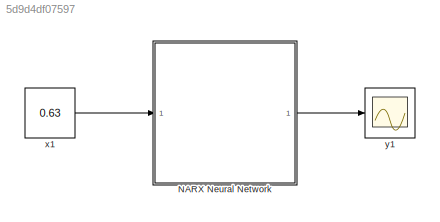
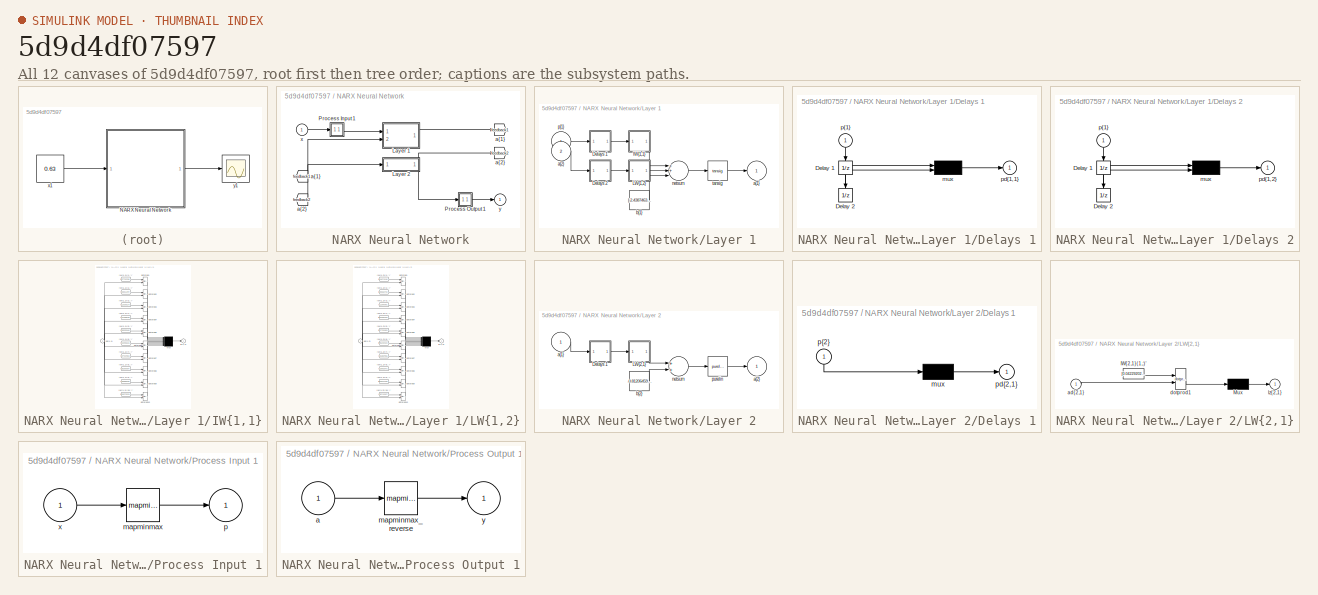
[diagram: thumbnail index - all 12 canvases of the model, root first then tree order]
MODEL slx_5d9d4df07597
KIND model
CONFIG AbsTol = auto
CONFIG EnableMultiTasking = off
CONFIG FixedStep = auto
CONFIG MaxStep = auto
CONFIG MinStep = auto
CONFIG RelTol = 1e-3
CONFIG SampleTimeConstraint = Unconstrained
CONFIG Solver = VariableStepAuto
CONFIG SolverName = VariableStepAuto
CONFIG StartTime = 0.0
CONFIG StopTime = 10.0
BLOCK [SubSystem] NARX Neural Network
  Ports = [1, 1]
  RequestExecContextInheritance = off
BLOCK [From] NARX Neural Network/ a{1} 
  GotoTag = feedback1
BLOCK [From] NARX Neural Network/ a{2} 
  GotoTag = feedback2
BLOCK [SubSystem] NARX Neural Network/Layer 1
  Ports = [2, 1]
  RequestExecContextInheritance = off
BLOCK [SubSystem] NARX Neural Network/Layer 1/Delays 1
  Ports = [1, 1]
  RequestExecContextInheritance = off
BLOCK [UnitDelay] NARX Neural Network/Layer 1/Delays 1/Delay 1
  InitialCondition = pi_input_1_delayed_1
  SampleTime = 0.01
BLOCK [UnitDelay] NARX Neural Network/Layer 1/Delays 1/Delay 2
  InitialCondition = pi_input_1_delayed_2
  SampleTime = 0.01
BLOCK [Mux] NARX Neural Network/Layer 1/Delays 1/mux
  Inputs = 2
  Ports = [2, 1]
BLOCK [Outport] NARX Neural Network/Layer 1/Delays 1/pd{1,1}
  IconDisplay = Port number
BLOCK [Inport] NARX Neural Network/Layer 1/Delays 1/p{1}
  IconDisplay = Port number
  PortDimensions = 1
  SampleTime = 0.01
BLOCK [SubSystem] NARX Neural Network/Layer 1/Delays 2
  Ports = [1, 1]
  RequestExecContextInheritance = off
BLOCK [UnitDelay] NARX Neural Network/Layer 1/Delays 2/Delay 1
  InitialCondition = ai_layer_2_delayed_1
  SampleTime = 0.01
BLOCK [UnitDelay] NARX Neural Network/Layer 1/Delays 2/Delay 2
  InitialCondition = ai_layer_2_delayed_2
  SampleTime = 0.01
BLOCK [Mux] NARX Neural Network/Layer 1/Delays 2/mux
  Inputs = 2
  Ports = [2, 1]
BLOCK [Outport] NARX Neural Network/Layer 1/Delays 2/pd{1,2}
  IconDisplay = Port number
BLOCK [Inport] NARX Neural Network/Layer 1/Delays 2/p{1}
  IconDisplay = Port number
  PortDimensions = 1
  SampleTime = 0.01
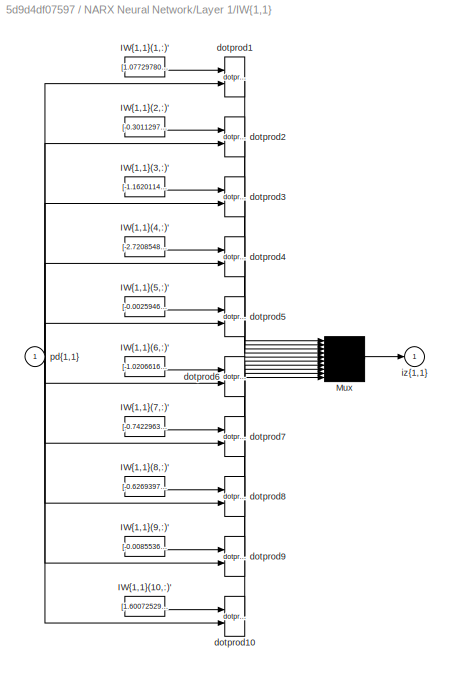
BLOCK [SubSystem] NARX Neural Network/Layer 1/IW{1,1}
  Ports = [1, 1]
  RequestExecContextInheritance = off
BLOCK [Constant] NARX Neural Network/Layer 1/IW{1,1}/IW{1,1}(1,:)'
  Value = [1.0772978049856869464662167956703342497348785400390625;-0.01012235439017921713455994137120796949602663516998291015625]
BLOCK [Constant] NARX Neural Network/Layer 1/IW{1,1}/IW{1,1}(10,:)'
  Value = [1.600725294846861768149892668589018285274505615234375;-0.280489653356175872023214878936414606869220733642578125]
BLOCK [Constant] NARX Neural Network/Layer 1/IW{1,1}/IW{1,1}(2,:)'
  Value = [-0.30112978484733987638577445977716706693172454833984375;-1.018346248745336080077095175511203706264495849609375]
BLOCK [Constant] NARX Neural Network/Layer 1/IW{1,1}/IW{1,1}(3,:)'
  Value = [-1.1620114065831967931075041633448563516139984130859375;1.09192647163427292156256953603588044643402099609375]
BLOCK [Constant] NARX Neural Network/Layer 1/IW{1,1}/IW{1,1}(4,:)'
  Value = [-2.7208548107889232170464310911484062671661376953125;2.68905401117679065947640992817468941211700439453125]
BLOCK [Constant] NARX Neural Network/Layer 1/IW{1,1}/IW{1,1}(5,:)'
  Value = [-0.0025946680557739410823148151763462010421790182590484619140625;0.0019710027003627013375552934348888811655342578887939453125]
BLOCK [Constant] NARX Neural Network/Layer 1/IW{1,1}/IW{1,1}(6,:)'
  Value = [-1.0206616494851192822324037479120306670665740966796875;1.509127390879307473170456432853825390338897705078125]
BLOCK [Constant] NARX Neural Network/Layer 1/IW{1,1}/IW{1,1}(7,:)'
  Value = [-0.742296352845602580572403894620947539806365966796875;1.7922463052203638778081540294806472957134246826171875]
BLOCK [Constant] NARX Neural Network/Layer 1/IW{1,1}/IW{1,1}(8,:)'
  Value = [-0.6269397128839793165155924725695513188838958740234375;0.38965571725769543309780829076771624386310577392578125]
BLOCK [Constant] NARX Neural Network/Layer 1/IW{1,1}/IW{1,1}(9,:)'
  Value = [-0.00855360191636327267528105977589802932925522327423095703125;0.01364841619945435235994324330022209323942661285400390625]
BLOCK [Mux] NARX Neural Network/Layer 1/IW{1,1}/Mux
  Inputs = 10
  Ports = [10, 1]
BLOCK [Reference] NARX Neural Network/Layer 1/IW{1,1}/dotprod1  REF=neural/Weight Functions/dotprod
  Ports = [2, 1]
  SourceBlock = neural/Weight Functions/dotprod
  SourceProductBaseCode = Missing
  SourceProductName = MATLAB Runtime - Deep Learning Toolbox
  SourceType = DOTPROD
BLOCK [Reference] NARX Neural Network/Layer 1/IW{1,1}/dotprod10  REF=neural/Weight Functions/dotprod
  Ports = [2, 1]
  SourceBlock = neural/Weight Functions/dotprod
  SourceProductBaseCode = Missing
  SourceProductName = MATLAB Runtime - Deep Learning Toolbox
  SourceType = DOTPROD
BLOCK [Reference] NARX Neural Network/Layer 1/IW{1,1}/dotprod2  REF=neural/Weight Functions/dotprod
  Ports = [2, 1]
  SourceBlock = neural/Weight Functions/dotprod
  SourceProductBaseCode = Missing
  SourceProductName = MATLAB Runtime - Deep Learning Toolbox
  SourceType = DOTPROD
BLOCK [Reference] NARX Neural Network/Layer 1/IW{1,1}/dotprod3  REF=neural/Weight Functions/dotprod
  Ports = [2, 1]
  SourceBlock = neural/Weight Functions/dotprod
  SourceProductBaseCode = Missing
  SourceProductName = MATLAB Runtime - Deep Learning Toolbox
  SourceType = DOTPROD
BLOCK [Reference] NARX Neural Network/Layer 1/IW{1,1}/dotprod4  REF=neural/Weight Functions/dotprod
  Ports = [2, 1]
  SourceBlock = neural/Weight Functions/dotprod
  SourceProductBaseCode = Missing
  SourceProductName = MATLAB Runtime - Deep Learning Toolbox
  SourceType = DOTPROD
BLOCK [Reference] NARX Neural Network/Layer 1/IW{1,1}/dotprod5  REF=neural/Weight Functions/dotprod
  Ports = [2, 1]
  SourceBlock = neural/Weight Functions/dotprod
  SourceProductBaseCode = Missing
  SourceProductName = MATLAB Runtime - Deep Learning Toolbox
  SourceType = DOTPROD
BLOCK [Reference] NARX Neural Network/Layer 1/IW{1,1}/dotprod6  REF=neural/Weight Functions/dotprod
  Ports = [2, 1]
  SourceBlock = neural/Weight Functions/dotprod
  SourceProductBaseCode = Missing
  SourceProductName = MATLAB Runtime - Deep Learning Toolbox
  SourceType = DOTPROD
BLOCK [Reference] NARX Neural Network/Layer 1/IW{1,1}/dotprod7  REF=neural/Weight Functions/dotprod
  Ports = [2, 1]
  SourceBlock = neural/Weight Functions/dotprod
  SourceProductBaseCode = Missing
  SourceProductName = MATLAB Runtime - Deep Learning Toolbox
  SourceType = DOTPROD
BLOCK [Reference] NARX Neural Network/Layer 1/IW{1,1}/dotprod8  REF=neural/Weight Functions/dotprod
  Ports = [2, 1]
  SourceBlock = neural/Weight Functions/dotprod
  SourceProductBaseCode = Missing
  SourceProductName = MATLAB Runtime - Deep Learning Toolbox
  SourceType = DOTPROD
BLOCK [Reference] NARX Neural Network/Layer 1/IW{1,1}/dotprod9  REF=neural/Weight Functions/dotprod
  Ports = [2, 1]
  SourceBlock = neural/Weight Functions/dotprod
  SourceProductBaseCode = Missing
  SourceProductName = MATLAB Runtime - Deep Learning Toolbox
  SourceType = DOTPROD
BLOCK [Outport] NARX Neural Network/Layer 1/IW{1,1}/iz{1,1}
  IconDisplay = Port number
BLOCK [Inport] NARX Neural Network/Layer 1/IW{1,1}/pd{1,1}
  IconDisplay = Port number
  PortDimensions = 2
  SampleTime = 0.01
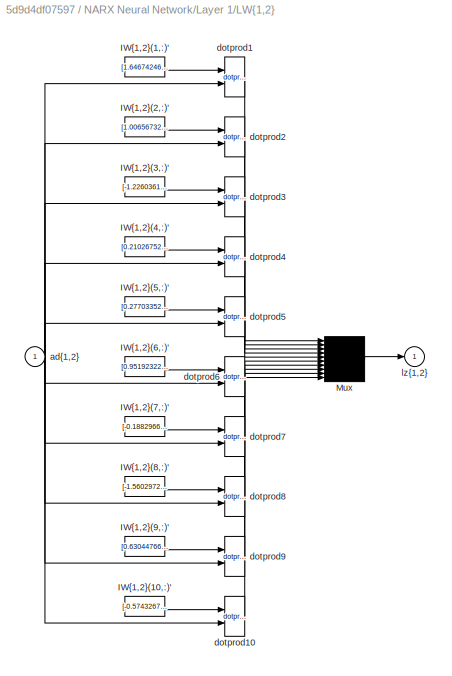
BLOCK [SubSystem] NARX Neural Network/Layer 1/LW{1,2}
  Ports = [1, 1]
  RequestExecContextInheritance = off
BLOCK [Constant] NARX Neural Network/Layer 1/LW{1,2}/IW{1,2}(1,:)'
  Value = [1.6467424662724281514414315097383223474025726318359375;-1.4046041172633725313545483004418201744556427001953125]
BLOCK [Constant] NARX Neural Network/Layer 1/LW{1,2}/IW{1,2}(10,:)'
  Value = [-0.5743267283267512457456405172706581652164459228515625;0.958706856278424002226756783784367144107818603515625]
BLOCK [Constant] NARX Neural Network/Layer 1/LW{1,2}/IW{1,2}(2,:)'
  Value = [1.006567321369391532215331608313135802745819091796875;-1.3021991841284841218140400087577290832996368408203125]
BLOCK [Constant] NARX Neural Network/Layer 1/LW{1,2}/IW{1,2}(3,:)'
  Value = [-1.226036149860531221378323607495985925197601318359375;-0.078923729854379287562693434665561653673648834228515625]
BLOCK [Constant] NARX Neural Network/Layer 1/LW{1,2}/IW{1,2}(4,:)'
  Value = [0.21026752207297250141238009746302850544452667236328125;-0.58106775827737522366334133039345033466815948486328125]
BLOCK [Constant] NARX Neural Network/Layer 1/LW{1,2}/IW{1,2}(5,:)'
  Value = [0.27703352801619074430306000067503191530704498291015625;-0.06166392647433656393207712653747876174747943878173828125]
BLOCK [Constant] NARX Neural Network/Layer 1/LW{1,2}/IW{1,2}(6,:)'
  Value = [0.95192322808195939387587714008986949920654296875;1.007778825804528377574342812295071780681610107421875]
BLOCK [Constant] NARX Neural Network/Layer 1/LW{1,2}/IW{1,2}(7,:)'
  Value = [-0.1882966625783847047781449646208784542977809906005859375;0.92356376869554868136447112192399799823760986328125]
BLOCK [Constant] NARX Neural Network/Layer 1/LW{1,2}/IW{1,2}(8,:)'
  Value = [-1.5602972248383746300959273867192678153514862060546875;1.1680766842344436629019810425234027206897735595703125]
BLOCK [Constant] NARX Neural Network/Layer 1/LW{1,2}/IW{1,2}(9,:)'
  Value = [0.630447668788729487232558312825858592987060546875;-0.0426187896611043004480023910218733362853527069091796875]
BLOCK [Mux] NARX Neural Network/Layer 1/LW{1,2}/Mux
  Inputs = 10
  Ports = [10, 1]
BLOCK [Inport] NARX Neural Network/Layer 1/LW{1,2}/ad{1,2}
  IconDisplay = Port number
  PortDimensions = 2
  SampleTime = 0.01
BLOCK [Reference] NARX Neural Network/Layer 1/LW{1,2}/dotprod1  REF=neural/Weight Functions/dotprod
  Ports = [2, 1]
  SourceBlock = neural/Weight Functions/dotprod
  SourceProductBaseCode = Missing
  SourceProductName = MATLAB Runtime - Deep Learning Toolbox
  SourceType = DOTPROD
BLOCK [Reference] NARX Neural Network/Layer 1/LW{1,2}/dotprod10  REF=neural/Weight Functions/dotprod
  Ports = [2, 1]
  SourceBlock = neural/Weight Functions/dotprod
  SourceProductBaseCode = Missing
  SourceProductName = MATLAB Runtime - Deep Learning Toolbox
  SourceType = DOTPROD
BLOCK [Reference] NARX Neural Network/Layer 1/LW{1,2}/dotprod2  REF=neural/Weight Functions/dotprod
  Ports = [2, 1]
  SourceBlock = neural/Weight Functions/dotprod
  SourceProductBaseCode = Missing
  SourceProductName = MATLAB Runtime - Deep Learning Toolbox
  SourceType = DOTPROD
BLOCK [Reference] NARX Neural Network/Layer 1/LW{1,2}/dotprod3  REF=neural/Weight Functions/dotprod
  Ports = [2, 1]
  SourceBlock = neural/Weight Functions/dotprod
  SourceProductBaseCode = Missing
  SourceProductName = MATLAB Runtime - Deep Learning Toolbox
  SourceType = DOTPROD
BLOCK [Reference] NARX Neural Network/Layer 1/LW{1,2}/dotprod4  REF=neural/Weight Functions/dotprod
  Ports = [2, 1]
  SourceBlock = neural/Weight Functions/dotprod
  SourceProductBaseCode = Missing
  SourceProductName = MATLAB Runtime - Deep Learning Toolbox
  SourceType = DOTPROD
BLOCK [Reference] NARX Neural Network/Layer 1/LW{1,2}/dotprod5  REF=neural/Weight Functions/dotprod
  Ports = [2, 1]
  SourceBlock = neural/Weight Functions/dotprod
  SourceProductBaseCode = Missing
  SourceProductName = MATLAB Runtime - Deep Learning Toolbox
  SourceType = DOTPROD
BLOCK [Reference] NARX Neural Network/Layer 1/LW{1,2}/dotprod6  REF=neural/Weight Functions/dotprod
  Ports = [2, 1]
  SourceBlock = neural/Weight Functions/dotprod
  SourceProductBaseCode = Missing
  SourceProductName = MATLAB Runtime - Deep Learning Toolbox
  SourceType = DOTPROD
BLOCK [Reference] NARX Neural Network/Layer 1/LW{1,2}/dotprod7  REF=neural/Weight Functions/dotprod
  Ports = [2, 1]
  SourceBlock = neural/Weight Functions/dotprod
  SourceProductBaseCode = Missing
  SourceProductName = MATLAB Runtime - Deep Learning Toolbox
  SourceType = DOTPROD
BLOCK [Reference] NARX Neural Network/Layer 1/LW{1,2}/dotprod8  REF=neural/Weight Functions/dotprod
  Ports = [2, 1]
  SourceBlock = neural/Weight Functions/dotprod
  SourceProductBaseCode = Missing
  SourceProductName = MATLAB Runtime - Deep Learning Toolbox
  SourceType = DOTPROD
BLOCK [Reference] NARX Neural Network/Layer 1/LW{1,2}/dotprod9  REF=neural/Weight Functions/dotprod
  Ports = [2, 1]
  SourceBlock = neural/Weight Functions/dotprod
  SourceProductBaseCode = Missing
  SourceProductName = MATLAB Runtime - Deep Learning Toolbox
  SourceType = DOTPROD
BLOCK [Outport] NARX Neural Network/Layer 1/LW{1,2}/lz{1,2}
  IconDisplay = Port number
BLOCK [Outport] NARX Neural Network/Layer 1/a{1}
  IconDisplay = Port number
  InitialOutput = [0;0;0;0;0;0;0;0;0;0]
BLOCK [Inport] NARX Neural Network/Layer 1/a{2} 
  IconDisplay = Port number
  Port = 2
  PortDimensions = 1
  SampleTime = 0.01
BLOCK [Constant] NARX Neural Network/Layer 1/b{1}
  Value = [-2.438746381272481666968587887822650372982025146484375;1.952722934367705942548809616710059344768524169921875;0.360989572968640703987119877638178877532482147216796875;1.4098344774993252226380491265445016324520111083984375;0.306283714361408054838165071487310342490673065185546875;0.4496475008793112682070614027907140552997589111328125;-0.94628538846371490489417510616476647555828094482421875;-0.867691...<+158ch>
BLOCK [Sum] NARX Neural Network/Layer 1/netsum
  Inputs = 3
  Ports = [3, 1]
BLOCK [Inport] NARX Neural Network/Layer 1/p{1}
  IconDisplay = Port number
  PortDimensions = 1
  SampleTime = 0.01
BLOCK [Reference] NARX Neural Network/Layer 1/tansig  REF=neural/Transfer Functions/tansig
  Ports = [1, 1]
  SourceBlock = neural/Transfer Functions/tansig
  SourceProductBaseCode = Missing
  SourceProductName = MATLAB Runtime - Deep Learning Toolbox
  SourceType = TANSIG
BLOCK [SubSystem] NARX Neural Network/Layer 2
  Ports = [1, 1]
  RequestExecContextInheritance = off
BLOCK [SubSystem] NARX Neural Network/Layer 2/Delays 1
  Ports = [1, 1]
  RequestExecContextInheritance = off
BLOCK [Mux] NARX Neural Network/Layer 2/Delays 1/mux
  Inputs = 1
  Ports = [1, 1]
BLOCK [Outport] NARX Neural Network/Layer 2/Delays 1/pd{2,1}
  IconDisplay = Port number
BLOCK [Inport] NARX Neural Network/Layer 2/Delays 1/p{2}
  IconDisplay = Port number
  PortDimensions = 10
  SampleTime = 0.01
BLOCK [SubSystem] NARX Neural Network/Layer 2/LW{2,1}
  Ports = [1, 1]
  RequestExecContextInheritance = off
BLOCK [Constant] NARX Neural Network/Layer 2/LW{2,1}/IW{2,1}(1,:)'
  Value = [0.042292024312798222329679020958792534656822681427001953125;0.01042980899158286491046343513744432129897177219390869140625;-0.006893923205779697686856888338979842956177890300750732421875;9.809714551068065939432027988686968456022441387176513671875e-05;4.4295631012946188320711371488869190216064453125;0.000629906280342792013367259063016945219715125858783721923828125;0.00131415319551033793303573826705...<+214ch>
BLOCK [Mux] NARX Neural Network/Layer 2/LW{2,1}/Mux
  Inputs = 1
  Ports = [1, 1]
BLOCK [Inport] NARX Neural Network/Layer 2/LW{2,1}/ad{2,1}
  IconDisplay = Port number
  PortDimensions = 10
  SampleTime = 0.01
BLOCK [Reference] NARX Neural Network/Layer 2/LW{2,1}/dotprod1  REF=neural/Weight Functions/dotprod
  Ports = [2, 1]
  SourceBlock = neural/Weight Functions/dotprod
  SourceProductBaseCode = Missing
  SourceProductName = MATLAB Runtime - Deep Learning Toolbox
  SourceType = DOTPROD
BLOCK [Outport] NARX Neural Network/Layer 2/LW{2,1}/lz{2,1}
  IconDisplay = Port number
BLOCK [Inport] NARX Neural Network/Layer 2/a{1} 
  IconDisplay = Port number
  PortDimensions = 10
  SampleTime = 0.01
BLOCK [Outport] NARX Neural Network/Layer 2/a{2}
  IconDisplay = Port number
  InitialOutput = 0
BLOCK [Constant] NARX Neural Network/Layer 2/b{2}
  Value = -0.81206459550331822061508546539698727428913116455078125
BLOCK [Sum] NARX Neural Network/Layer 2/netsum
  Inputs = 2
  Ports = [2, 1]
BLOCK [Reference] NARX Neural Network/Layer 2/purelin  REF=neural/Transfer Functions/purelin
  Ports = [1, 1]
  SourceBlock = neural/Transfer Functions/purelin
  SourceProductBaseCode = Missing
  SourceProductName = MATLAB Runtime - Deep Learning Toolbox
  SourceType = PURELIN
BLOCK [SubSystem] NARX Neural Network/Process Input 1
  Ports = [1, 1]
  RequestExecContextInheritance = off
BLOCK [Reference] NARX Neural Network/Process Input 1/mapminmax  REF=neural/Processing Functions/mapminmax
  Ports = [1, 1]
  SourceBlock = neural/Processing Functions/mapminmax
  SourceProductBaseCode = Missing
  SourceProductName = MATLAB Runtime - Deep Learning Toolbox
  SourceType = MAPMINMAX Preprocess
BLOCK [Outport] NARX Neural Network/Process Input 1/p
  IconDisplay = Port number
  PortDimensions = 1
  SampleTime = 0.01
BLOCK [Inport] NARX Neural Network/Process Input 1/x
  IconDisplay = Port number
  PortDimensions = 1
  SampleTime = 0.01
BLOCK [SubSystem] NARX Neural Network/Process Output 1
  Ports = [1, 1]
  RequestExecContextInheritance = off
BLOCK [Inport] NARX Neural Network/Process Output 1/a
  IconDisplay = Port number
  PortDimensions = 1
  SampleTime = 0.01
BLOCK [Reference] NARX Neural Network/Process Output 1/mapminmax_reverse  REF=neural/Processing Functions/mapminmax_reverse
  Ports = [1, 1]
  SourceBlock = neural/Processing Functions/mapminmax_reverse
  SourceProductBaseCode = Missing
  SourceProductName = MATLAB Runtime - Deep Learning Toolbox
  SourceType = MAPMINMAX Reverse Process
BLOCK [Outport] NARX Neural Network/Process Output 1/y
  IconDisplay = Port number
  PortDimensions = 1
  SampleTime = 0.01
BLOCK [Goto] NARX Neural Network/a{1}
  GotoTag = feedback1
BLOCK [Goto] NARX Neural Network/a{2}
  GotoTag = feedback2
BLOCK [Inport] NARX Neural Network/x
  IconDisplay = Port number
  PortDimensions = 1
  SampleTime = 0.01
BLOCK [Outport] NARX Neural Network/y
  IconDisplay = Port number
  InitialOutput = 0
BLOCK [Constant] x1
  SampleTime = 0.01
  Value = 0.63
BLOCK [Scope] y1
  Floating = off
  NumInputPorts = 1
  Ports = [1]
LINE NARX Neural Network/ a{1} :1 -> NARX Neural Network/Layer 2:1
LINE NARX Neural Network/ a{2} :1 -> NARX Neural Network/Layer 1:2
NET NARX Neural Network/Layer 1/Delays 1/Delay 1:1 -> NARX Neural Network/Layer 1/Delays 1/Delay 2:1, NARX Neural Network/Layer 1/Delays 1/mux:1
LINE NARX Neural Network/Layer 1/Delays 1/Delay 2:1 -> NARX Neural Network/Layer 1/Delays 1/mux:2
LINE NARX Neural Network/Layer 1/Delays 1/mux:1 -> NARX Neural Network/Layer 1/Delays 1/pd{1,1}:1
LINE NARX Neural Network/Layer 1/Delays 1/p{1}:1 -> NARX Neural Network/Layer 1/Delays 1/Delay 1:1
LINE NARX Neural Network/Layer 1/Delays 1:1 -> NARX Neural Network/Layer 1/IW{1,1}:1
NET NARX Neural Network/Layer 1/Delays 2/Delay 1:1 -> NARX Neural Network/Layer 1/Delays 2/Delay 2:1, NARX Neural Network/Layer 1/Delays 2/mux:1
LINE NARX Neural Network/Layer 1/Delays 2/Delay 2:1 -> NARX Neural Network/Layer 1/Delays 2/mux:2
LINE NARX Neural Network/Layer 1/Delays 2/mux:1 -> NARX Neural Network/Layer 1/Delays 2/pd{1,2}:1
LINE NARX Neural Network/Layer 1/Delays 2/p{1}:1 -> NARX Neural Network/Layer 1/Delays 2/Delay 1:1
LINE NARX Neural Network/Layer 1/Delays 2:1 -> NARX Neural Network/Layer 1/LW{1,2}:1
LINE NARX Neural Network/Layer 1/IW{1,1}/IW{1,1}(1,:)':1 -> NARX Neural Network/Layer 1/IW{1,1}/dotprod1:1
LINE NARX Neural Network/Layer 1/IW{1,1}/IW{1,1}(10,:)':1 -> NARX Neural Network/Layer 1/IW{1,1}/dotprod10:1
LINE NARX Neural Network/Layer 1/IW{1,1}/IW{1,1}(2,:)':1 -> NARX Neural Network/Layer 1/IW{1,1}/dotprod2:1
LINE NARX Neural Network/Layer 1/IW{1,1}/IW{1,1}(3,:)':1 -> NARX Neural Network/Layer 1/IW{1,1}/dotprod3:1
LINE NARX Neural Network/Layer 1/IW{1,1}/IW{1,1}(4,:)':1 -> NARX Neural Network/Layer 1/IW{1,1}/dotprod4:1
LINE NARX Neural Network/Layer 1/IW{1,1}/IW{1,1}(5,:)':1 -> NARX Neural Network/Layer 1/IW{1,1}/dotprod5:1
LINE NARX Neural Network/Layer 1/IW{1,1}/IW{1,1}(6,:)':1 -> NARX Neural Network/Layer 1/IW{1,1}/dotprod6:1
LINE NARX Neural Network/Layer 1/IW{1,1}/IW{1,1}(7,:)':1 -> NARX Neural Network/Layer 1/IW{1,1}/dotprod7:1
LINE NARX Neural Network/Layer 1/IW{1,1}/IW{1,1}(8,:)':1 -> NARX Neural Network/Layer 1/IW{1,1}/dotprod8:1
LINE NARX Neural Network/Layer 1/IW{1,1}/IW{1,1}(9,:)':1 -> NARX Neural Network/Layer 1/IW{1,1}/dotprod9:1
LINE NARX Neural Network/Layer 1/IW{1,1}/Mux:1 -> NARX Neural Network/Layer 1/IW{1,1}/iz{1,1}:1
LINE NARX Neural Network/Layer 1/IW{1,1}/dotprod10:1 -> NARX Neural Network/Layer 1/IW{1,1}/Mux:10
LINE NARX Neural Network/Layer 1/IW{1,1}/dotprod1:1 -> NARX Neural Network/Layer 1/IW{1,1}/Mux:1
LINE NARX Neural Network/Layer 1/IW{1,1}/dotprod2:1 -> NARX Neural Network/Layer 1/IW{1,1}/Mux:2
LINE NARX Neural Network/Layer 1/IW{1,1}/dotprod3:1 -> NARX Neural Network/Layer 1/IW{1,1}/Mux:3
LINE NARX Neural Network/Layer 1/IW{1,1}/dotprod4:1 -> NARX Neural Network/Layer 1/IW{1,1}/Mux:4
LINE NARX Neural Network/Layer 1/IW{1,1}/dotprod5:1 -> NARX Neural Network/Layer 1/IW{1,1}/Mux:5
LINE NARX Neural Network/Layer 1/IW{1,1}/dotprod6:1 -> NARX Neural Network/Layer 1/IW{1,1}/Mux:6
LINE NARX Neural Network/Layer 1/IW{1,1}/dotprod7:1 -> NARX Neural Network/Layer 1/IW{1,1}/Mux:7
LINE NARX Neural Network/Layer 1/IW{1,1}/dotprod8:1 -> NARX Neural Network/Layer 1/IW{1,1}/Mux:8
LINE NARX Neural Network/Layer 1/IW{1,1}/dotprod9:1 -> NARX Neural Network/Layer 1/IW{1,1}/Mux:9
NET NARX Neural Network/Layer 1/IW{1,1}/pd{1,1}:1 -> NARX Neural Network/Layer 1/IW{1,1}/dotprod10:2, NARX Neural Network/Layer 1/IW{1,1}/dotprod1:2, NARX Neural Network/Layer 1/IW{1,1}/dotprod2:2, NARX Neural Network/Layer 1/IW{1,1}/dotprod3:2, NARX Neural Network/Layer 1/IW{1,1}/dotprod4:2, NARX Neural Network/Layer 1/IW{1,1}/dotprod5:2, NARX Neural Network/Layer 1/IW{1,1}/dotprod6:2, NARX Neural Network/Layer 1/IW{1,1}/dotprod7:2, NARX Neural Network/Layer 1/IW{1,1}/dotprod8:2, NARX Neural Network/Layer 1/IW{1,1}/dotprod9:2
LINE NARX Neural Network/Layer 1/IW{1,1}:1 -> NARX Neural Network/Layer 1/netsum:1
LINE NARX Neural Network/Layer 1/LW{1,2}/IW{1,2}(1,:)':1 -> NARX Neural Network/Layer 1/LW{1,2}/dotprod1:1
LINE NARX Neural Network/Layer 1/LW{1,2}/IW{1,2}(10,:)':1 -> NARX Neural Network/Layer 1/LW{1,2}/dotprod10:1
LINE NARX Neural Network/Layer 1/LW{1,2}/IW{1,2}(2,:)':1 -> NARX Neural Network/Layer 1/LW{1,2}/dotprod2:1
LINE NARX Neural Network/Layer 1/LW{1,2}/IW{1,2}(3,:)':1 -> NARX Neural Network/Layer 1/LW{1,2}/dotprod3:1
LINE NARX Neural Network/Layer 1/LW{1,2}/IW{1,2}(4,:)':1 -> NARX Neural Network/Layer 1/LW{1,2}/dotprod4:1
LINE NARX Neural Network/Layer 1/LW{1,2}/IW{1,2}(5,:)':1 -> NARX Neural Network/Layer 1/LW{1,2}/dotprod5:1
LINE NARX Neural Network/Layer 1/LW{1,2}/IW{1,2}(6,:)':1 -> NARX Neural Network/Layer 1/LW{1,2}/dotprod6:1
LINE NARX Neural Network/Layer 1/LW{1,2}/IW{1,2}(7,:)':1 -> NARX Neural Network/Layer 1/LW{1,2}/dotprod7:1
LINE NARX Neural Network/Layer 1/LW{1,2}/IW{1,2}(8,:)':1 -> NARX Neural Network/Layer 1/LW{1,2}/dotprod8:1
LINE NARX Neural Network/Layer 1/LW{1,2}/IW{1,2}(9,:)':1 -> NARX Neural Network/Layer 1/LW{1,2}/dotprod9:1
LINE NARX Neural Network/Layer 1/LW{1,2}/Mux:1 -> NARX Neural Network/Layer 1/LW{1,2}/lz{1,2}:1
NET NARX Neural Network/Layer 1/LW{1,2}/ad{1,2}:1 -> NARX Neural Network/Layer 1/LW{1,2}/dotprod10:2, NARX Neural Network/Layer 1/LW{1,2}/dotprod1:2, NARX Neural Network/Layer 1/LW{1,2}/dotprod2:2, NARX Neural Network/Layer 1/LW{1,2}/dotprod3:2, NARX Neural Network/Layer 1/LW{1,2}/dotprod4:2, NARX Neural Network/Layer 1/LW{1,2}/dotprod5:2, NARX Neural Network/Layer 1/LW{1,2}/dotprod6:2, NARX Neural Network/Layer 1/LW{1,2}/dotprod7:2, NARX Neural Network/Layer 1/LW{1,2}/dotprod8:2, NARX Neural Network/Layer 1/LW{1,2}/dotprod9:2
LINE NARX Neural Network/Layer 1/LW{1,2}/dotprod10:1 -> NARX Neural Network/Layer 1/LW{1,2}/Mux:10
LINE NARX Neural Network/Layer 1/LW{1,2}/dotprod1:1 -> NARX Neural Network/Layer 1/LW{1,2}/Mux:1
LINE NARX Neural Network/Layer 1/LW{1,2}/dotprod2:1 -> NARX Neural Network/Layer 1/LW{1,2}/Mux:2
LINE NARX Neural Network/Layer 1/LW{1,2}/dotprod3:1 -> NARX Neural Network/Layer 1/LW{1,2}/Mux:3
LINE NARX Neural Network/Layer 1/LW{1,2}/dotprod4:1 -> NARX Neural Network/Layer 1/LW{1,2}/Mux:4
LINE NARX Neural Network/Layer 1/LW{1,2}/dotprod5:1 -> NARX Neural Network/Layer 1/LW{1,2}/Mux:5
LINE NARX Neural Network/Layer 1/LW{1,2}/dotprod6:1 -> NARX Neural Network/Layer 1/LW{1,2}/Mux:6
LINE NARX Neural Network/Layer 1/LW{1,2}/dotprod7:1 -> NARX Neural Network/Layer 1/LW{1,2}/Mux:7
LINE NARX Neural Network/Layer 1/LW{1,2}/dotprod8:1 -> NARX Neural Network/Layer 1/LW{1,2}/Mux:8
LINE NARX Neural Network/Layer 1/LW{1,2}/dotprod9:1 -> NARX Neural Network/Layer 1/LW{1,2}/Mux:9
LINE NARX Neural Network/Layer 1/LW{1,2}:1 -> NARX Neural Network/Layer 1/netsum:2
LINE NARX Neural Network/Layer 1/a{2} :1 -> NARX Neural Network/Layer 1/Delays 2:1
LINE NARX Neural Network/Layer 1/b{1}:1 -> NARX Neural Network/Layer 1/netsum:3
LINE NARX Neural Network/Layer 1/netsum:1 -> NARX Neural Network/Layer 1/tansig:1
LINE NARX Neural Network/Layer 1/p{1}:1 -> NARX Neural Network/Layer 1/Delays 1:1
LINE NARX Neural Network/Layer 1/tansig:1 -> NARX Neural Network/Layer 1/a{1}:1
LINE NARX Neural Network/Layer 1:1 -> NARX Neural Network/a{1}:1
LINE NARX Neural Network/Layer 2/Delays 1/mux:1 -> NARX Neural Network/Layer 2/Delays 1/pd{2,1}:1
LINE NARX Neural Network/Layer 2/Delays 1/p{2}:1 -> NARX Neural Network/Layer 2/Delays 1/mux:1
LINE NARX Neural Network/Layer 2/Delays 1:1 -> NARX Neural Network/Layer 2/LW{2,1}:1
LINE NARX Neural Network/Layer 2/LW{2,1}/IW{2,1}(1,:)':1 -> NARX Neural Network/Layer 2/LW{2,1}/dotprod1:1
LINE NARX Neural Network/Layer 2/LW{2,1}/Mux:1 -> NARX Neural Network/Layer 2/LW{2,1}/lz{2,1}:1
LINE NARX Neural Network/Layer 2/LW{2,1}/ad{2,1}:1 -> NARX Neural Network/Layer 2/LW{2,1}/dotprod1:2
LINE NARX Neural Network/Layer 2/LW{2,1}/dotprod1:1 -> NARX Neural Network/Layer 2/LW{2,1}/Mux:1
LINE NARX Neural Network/Layer 2/LW{2,1}:1 -> NARX Neural Network/Layer 2/netsum:1
LINE NARX Neural Network/Layer 2/a{1} :1 -> NARX Neural Network/Layer 2/Delays 1:1
LINE NARX Neural Network/Layer 2/b{2}:1 -> NARX Neural Network/Layer 2/netsum:2
LINE NARX Neural Network/Layer 2/netsum:1 -> NARX Neural Network/Layer 2/purelin:1
LINE NARX Neural Network/Layer 2/purelin:1 -> NARX Neural Network/Layer 2/a{2}:1
NET NARX Neural Network/Layer 2:1 -> NARX Neural Network/Process Output 1:1, NARX Neural Network/a{2}:1
LINE NARX Neural Network/Process Input 1/mapminmax:1 -> NARX Neural Network/Process Input 1/p:1
LINE NARX Neural Network/Process Input 1/x:1 -> NARX Neural Network/Process Input 1/mapminmax:1
LINE NARX Neural Network/Process Input 1:1 -> NARX Neural Network/Layer 1:1
LINE NARX Neural Network/Process Output 1/a:1 -> NARX Neural Network/Process Output 1/mapminmax_reverse:1
LINE NARX Neural Network/Process Output 1/mapminmax_reverse:1 -> NARX Neural Network/Process Output 1/y:1
LINE NARX Neural Network/Process Output 1:1 -> NARX Neural Network/y:1
LINE NARX Neural Network/x:1 -> NARX Neural Network/Process Input 1:1
LINE NARX Neural Network:1 -> y1:1
LINE x1:1 -> NARX Neural Network:1
note: NET lines group one-source signal fan-out (src -> all destinations, sorted); 1:1 wires keep LINE
